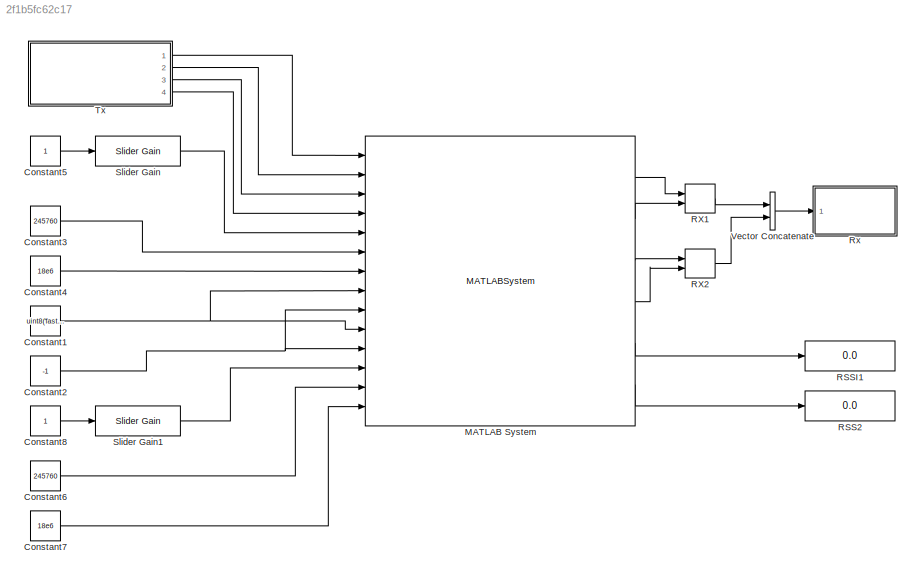
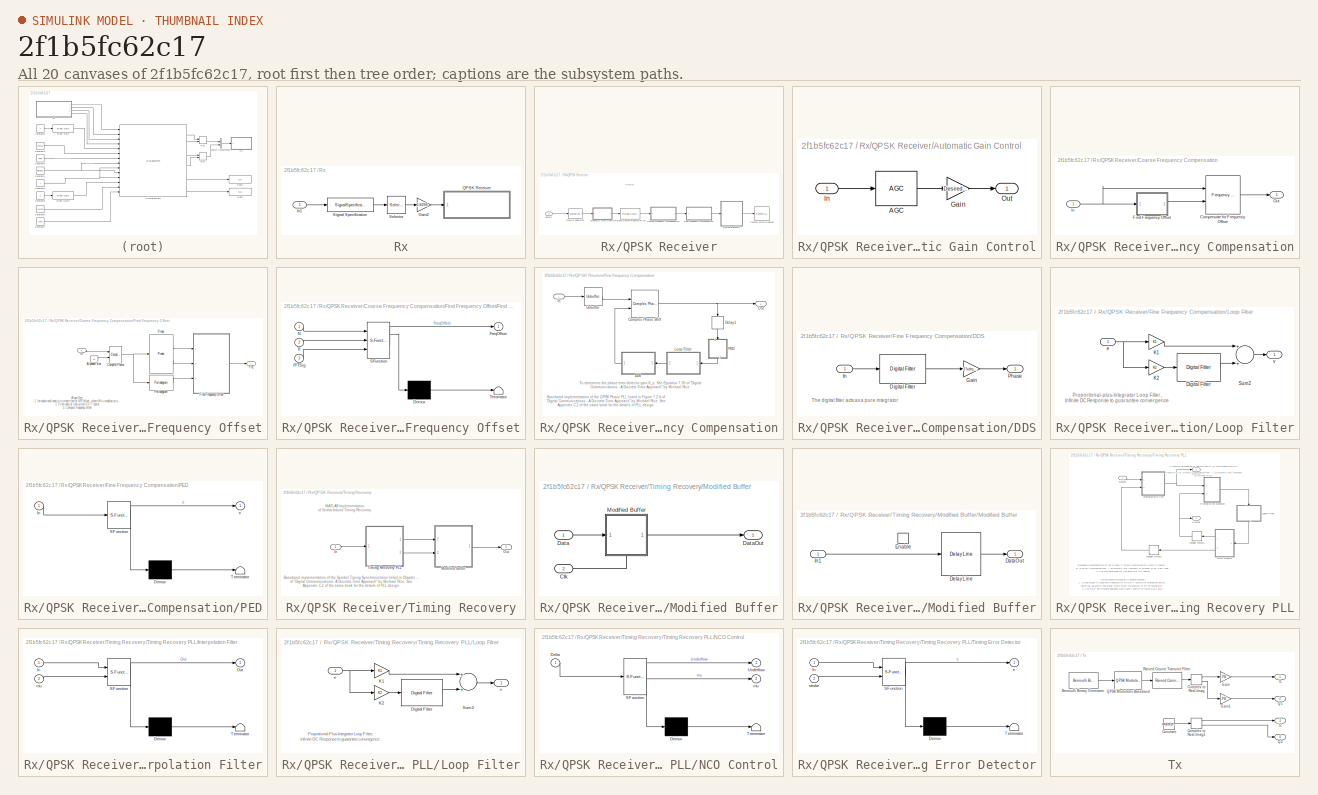
[diagram: thumbnail index - all 20 canvases of the model, root first then tree order]
MODEL slx_2f1b5fc62c17
KIND model
CONFIG AbsTol = auto
CONFIG EnableMultiTasking = on
CONFIG FixedStep = auto
CONFIG MaxStep = auto
CONFIG MinStep = auto
CONFIG PreLoadFcn = inputchannel = 120000;\noutputchannel = 40000;\nload('sdrqpsktx.mat');\nload('sdrqpskrx.mat');
CONFIG RelTol = 1e-3
CONFIG SampleTimeConstraint = Unconstrained
CONFIG Solver = ode45
CONFIG SolverName = ode45
CONFIG StartTime = 0.0
CONFIG StopTime = Inf
BLOCK [Constant] Constant1
  SampleTime = -1
  Value = uint8('fast_attack')
BLOCK [Constant] Constant2
  SampleTime = -1
  Value = -1
BLOCK [Constant] Constant3
  SampleTime = -1
  Value = 245760
BLOCK [Constant] Constant4
  SampleTime = -1
  Value = 18e6
BLOCK [Constant] Constant5
  SampleTime = -1
BLOCK [Constant] Constant6
  SampleTime = -1
  Value = 245760
BLOCK [Constant] Constant7
  SampleTime = -1
  Value = 18e6
BLOCK [Constant] Constant8
  SampleTime = -1
BLOCK [MATLABSystem] MATLAB System
  DialogController = sysobjdialog.BlockDynDialog
  MaskDisplay = disp('ad9361');\nport_label('input',1,'DATA_IN1');\nport_label('input',2,'DATA_IN2');\nport_label('input',3,'DATA_IN3');\nport_label('input',4,'DATA_IN4');\nport_label('input',5,'RX_LO_FREQ');\nport_label('input',6,'RX_SAMPLING_FREQ');\nport_label('input',7,'RX_RF_BANDWIDTH');\nport_label('input',8,'RX1_GAIN_MODE');\nport_label('input',9,'RX1_GAIN');\nport_label('input',10,'RX2_GAIN_MODE');\nport_label('inpu...<+354ch>
  MaskType = iio_sys_obj
  Ports = [14, 6]
  SimulateUsing = Interpreted execution
  System = iio_sys_obj
  dev_name = ad9361
  in_ch_no = 4
  in_ch_size = inputchannel
  ip_address = 192.168.3.2
  out_ch_no = 4
  out_ch_size = outputchannel
BLOCK [Display] RSS2
  Decimation = 1
  Ports = [1]
BLOCK [Display] RSSI1
  Decimation = 1
  Ports = [1]
BLOCK [RealImagToComplex] RX1
  Ports = [2, 1]
  SampleTime = 1/245760*outputchannel
BLOCK [RealImagToComplex] RX2
  Ports = [2, 1]
  SampleTime = 1/245760*outputchannel
BLOCK [SubSystem] Rx
  Ports = [1]
  RequestExecContextInheritance = off
BLOCK [Gain] Rx/Gain2
  Gain = 1/4096
  OutDataTypeStr = Inherit: Inherit via internal rule
  ParamDataTypeStr = Inherit: Inherit via internal rule
  SaturateOnIntegerOverflow = off
BLOCK [Inport] Rx/In1
  IconDisplay = Port number
BLOCK [SubSystem] Rx/QPSK Receiver
  Ports = [1]
  RequestExecContextInheritance = off
BLOCK [SubSystem] Rx/QPSK Receiver/Automatic Gain Control
  Ports = [1, 1]
  RequestExecContextInheritance = off
BLOCK [Reference] Rx/QPSK Receiver/Automatic Gain Control/AGC  REF=commrfcorlib/AGC
  Ports = [1, 1]
  SourceBlock = commrfcorlib/AGC
  SourceProductBaseCode = CM
  SourceProductName = Communications Toolbox
  SourceType = AGC
BLOCK [Gain] Rx/QPSK Receiver/Automatic Gain Control/Gain
  Gain = DesiredAmplitude
  OutDataTypeStr = Inherit: Inherit via internal rule
  ParamDataTypeStr = Inherit: Inherit via internal rule
  SaturateOnIntegerOverflow = off
BLOCK [Inport] Rx/QPSK Receiver/Automatic Gain Control/In
  IconDisplay = Port number
BLOCK [Outport] Rx/QPSK Receiver/Automatic Gain Control/Out
  IconDisplay = Port number
BLOCK [SubSystem] Rx/QPSK Receiver/Coarse Frequency Compensation
  Ports = [1, 1]
  RequestExecContextInheritance = off
BLOCK [Reference] Rx/QPSK Receiver/Coarse Frequency Compensation/Compensate for Frequency Offset  REF=commrflib2/Phase//
Frequency
Offset
  Ports = [2, 1]
  SourceBlock = commrflib2/Phase//\nFrequency\nOffset
  SourceProductBaseCode = CM
  SourceProductName = Communications Toolbox
  SourceType = Phase/Frequency Offset
BLOCK [SubSystem] Rx/QPSK Receiver/Coarse Frequency Compensation/Find Frequency Offset
  Ports = [1, 1]
  RequestExecContextInheritance = off
BLOCK [Constant] Rx/QPSK Receiver/Coarse Frequency Compensation/Find Frequency Offset/Alphabet size
  OutDataTypeStr = Inherit: Inherit via back propagation
  Value = M
BLOCK [Reference] Rx/QPSK Receiver/Coarse Frequency Compensation/Find Frequency Offset/Complex Power  REF=commblksprivate/Complex Power
  Ports = [2, 1]
  SourceBlock = commblksprivate/Complex Power
  SourceProductBaseCode = CM
  SourceProductName = Communications Toolbox
  SourceType = Complex Power
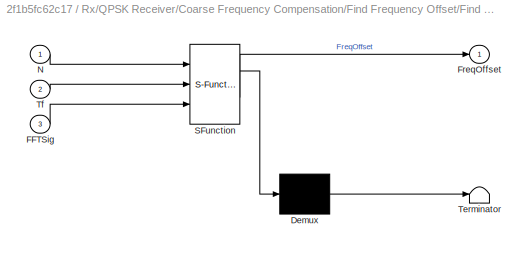
BLOCK [SubSystem] Rx/QPSK Receiver/Coarse Frequency Compensation/Find Frequency Offset/Find Frequency Offset
  ErrorFcn = Stateflow.Translate.translate
  PermitHierarchicalResolution = ExplicitOnly
  Ports = [3, 1]
  RequestExecContextInheritance = off
  SFBlockType = MATLAB Function
  TreatAsAtomicUnit = on
BLOCK [Demux] Rx/QPSK Receiver/Coarse Frequency Compensation/Find Frequency Offset/Find Frequency Offset/ Demux 
  Outputs = 1
  Ports = [1, 1]
BLOCK [S-Function] Rx/QPSK Receiver/Coarse Frequency Compensation/Find Frequency Offset/Find Frequency Offset/ SFunction 
  EnableBusSupport = off
  FunctionName = sf_sfun
  Parameters = M
  PortCounts = [3 2]
  Ports = [3, 2]
  SFcnIsStateOwnerBlock = off
  SFunctionDeploymentMode = off
  Tag = Stateflow S-Function 1
BLOCK [Terminator] Rx/QPSK Receiver/Coarse Frequency Compensation/Find Frequency Offset/Find Frequency Offset/ Terminator 
BLOCK [Inport] Rx/QPSK Receiver/Coarse Frequency Compensation/Find Frequency Offset/Find Frequency Offset/FFTSig
  IconDisplay = Port number
  Port = 3
BLOCK [Outport] Rx/QPSK Receiver/Coarse Frequency Compensation/Find Frequency Offset/Find Frequency Offset/FreqOffset
  IconDisplay = Port number
BLOCK [Inport] Rx/QPSK Receiver/Coarse Frequency Compensation/Find Frequency Offset/Find Frequency Offset/N
  IconDisplay = Port number
BLOCK [Inport] Rx/QPSK Receiver/Coarse Frequency Compensation/Find Frequency Offset/Find Frequency Offset/Tf
  IconDisplay = Port number
  Port = 2
BLOCK [Outport] Rx/QPSK Receiver/Coarse Frequency Compensation/Find Frequency Offset/Frq
  IconDisplay = Port number
BLOCK [Inport] Rx/QPSK Receiver/Coarse Frequency Compensation/Find Frequency Offset/In
  IconDisplay = Port number
BLOCK [Reference] Rx/QPSK Receiver/Coarse Frequency Compensation/Find Frequency Offset/Periodogram  REF=dspspect3/Periodogram
  Ports = [1, 1]
  SourceBlock = dspspect3/Periodogram
  SourceProductBaseCode = DS
  SourceProductName = DSP System Toolbox
  SourceType = Periodogram
BLOCK [Probe] Rx/QPSK Receiver/Coarse Frequency Compensation/Find Frequency Offset/Probe
  Ports = [1, 2]
  ProbeComplexSignal = off
BLOCK [Inport] Rx/QPSK Receiver/Coarse Frequency Compensation/In
  IconDisplay = Port number
BLOCK [Outport] Rx/QPSK Receiver/Coarse Frequency Compensation/Out
  IconDisplay = Port number
BLOCK [ConstellationDiagram] Rx/QPSK Receiver/Constellation Diagram
  Ports = [1]
  ScopeSpecificationString = comm.scopes.ConstellationDiagramBlockCfg('CurrentConfiguration', extmgr.ConfigurationSet(extmgr.Configuration('Core','General UI',true),extmgr.Configuration('Core','Source UI',true),extmgr.Configuration('Sources','WiredSimulink',true),extmgr.Configuration('Sources','Simulink',false),extmgr.Configuration('Sources','File',false),extmgr.Configuration('Sources','Workspace',false),extmgr.Configuration(...<+1467ch>
BLOCK [SubSystem] Rx/QPSK Receiver/Fine Frequency Compensation
  Ports = [1, 1]
  RequestExecContextInheritance = off
BLOCK [Reference] Rx/QPSK Receiver/Fine Frequency Compensation/Complex Phase Shift  REF=commutil2/Complex Phase
Shift
  Ports = [2, 1]
  SourceBlock = commutil2/Complex Phase\nShift
  SourceProductBaseCode = CM
  SourceProductName = Communications Toolbox
  SourceType = Complex Phase Shift
BLOCK [SubSystem] Rx/QPSK Receiver/Fine Frequency Compensation/DDS
  Ports = [1, 1]
  RequestExecContextInheritance = off
BLOCK [Reference] Rx/QPSK Receiver/Fine Frequency Compensation/DDS/Digital Filter  REF=dspobslib/Digital Filter
  Ports = [1, 1]
  SourceBlock = dspobslib/Digital Filter
  SourceProductBaseCode = DS
  SourceProductName = DSP System Toolbox
  SourceType = Digital Filter
  UserDataPersistent = on
BLOCK [Gain] Rx/QPSK Receiver/Fine Frequency Compensation/DDS/Gain
  Gain = -1*sdrqpskrx.FineFreqCompensateGain
  OutDataTypeStr = Inherit: Inherit via internal rule
  ParamDataTypeStr = Inherit: Inherit via internal rule
  SaturateOnIntegerOverflow = off
BLOCK [Inport] Rx/QPSK Receiver/Fine Frequency Compensation/DDS/In
  IconDisplay = Port number
BLOCK [Outport] Rx/QPSK Receiver/Fine Frequency Compensation/DDS/Phase
  IconDisplay = Port number
BLOCK [Delay] Rx/QPSK Receiver/Fine Frequency Compensation/Delay1
  DelayLength = 1
  InitialCondition = 0
  InputPortMap = u0
  InputProcessing = Columns as channels (frame based)
  Ports = [1, 1]
  UserDataPersistent = on
BLOCK [Inport] Rx/QPSK Receiver/Fine Frequency Compensation/In
  IconDisplay = Port number
BLOCK [SubSystem] Rx/QPSK Receiver/Fine Frequency Compensation/Loop Filter
  Ports = [1, 1]
  RequestExecContextInheritance = off
BLOCK [Reference] Rx/QPSK Receiver/Fine Frequency Compensation/Loop Filter/Digital Filter  REF=dspobslib/Digital Filter
  Ports = [1, 1]
  SourceBlock = dspobslib/Digital Filter
  SourceProductBaseCode = DS
  SourceProductName = DSP System Toolbox
  SourceType = Digital Filter
  UserDataPersistent = on
BLOCK [Gain] Rx/QPSK Receiver/Fine Frequency Compensation/Loop Filter/K1
  Gain = K1
  OutDataTypeStr = Inherit: Inherit via internal rule
  ParamDataTypeStr = Inherit: Inherit via internal rule
  SaturateOnIntegerOverflow = off
BLOCK [Gain] Rx/QPSK Receiver/Fine Frequency Compensation/Loop Filter/K2
  Gain = K2
  OutDataTypeStr = Inherit: Inherit via internal rule
  ParamDataTypeStr = Inherit: Inherit via internal rule
  SaturateOnIntegerOverflow = off
BLOCK [Sum] Rx/QPSK Receiver/Fine Frequency Compensation/Loop Filter/Sum2
  Ports = [2, 1]
BLOCK [Inport] Rx/QPSK Receiver/Fine Frequency Compensation/Loop Filter/e
  IconDisplay = Port number
BLOCK [Outport] Rx/QPSK Receiver/Fine Frequency Compensation/Loop Filter/v
  IconDisplay = Port number
BLOCK [Outport] Rx/QPSK Receiver/Fine Frequency Compensation/Out
  IconDisplay = Port number
BLOCK [SubSystem] Rx/QPSK Receiver/Fine Frequency Compensation/PED
  ErrorFcn = Stateflow.Translate.translate
  PermitHierarchicalResolution = ExplicitOnly
  Ports = [1, 1]
  RequestExecContextInheritance = off
  SFBlockType = MATLAB Function
  TreatAsAtomicUnit = on
BLOCK [Demux] Rx/QPSK Receiver/Fine Frequency Compensation/PED/ Demux 
  Outputs = 1
  Ports = [1, 1]
BLOCK [S-Function] Rx/QPSK Receiver/Fine Frequency Compensation/PED/ SFunction 
  EnableBusSupport = off
  FunctionName = sf_sfun
  PortCounts = [1 2]
  Ports = [1, 2]
  SFcnIsStateOwnerBlock = off
  SFunctionDeploymentMode = off
  Tag = Stateflow S-Function 7
BLOCK [Terminator] Rx/QPSK Receiver/Fine Frequency Compensation/PED/ Terminator 
BLOCK [Inport] Rx/QPSK Receiver/Fine Frequency Compensation/PED/In
  IconDisplay = Port number
BLOCK [Outport] Rx/QPSK Receiver/Fine Frequency Compensation/PED/e
  IconDisplay = Port number
BLOCK [Unbuffer] Rx/QPSK Receiver/Fine Frequency Compensation/Unbuffer
  Ports = [1, 1]
BLOCK [FrameConversion] Rx/QPSK Receiver/Frame Conversion
  Ports = [1, 1]
BLOCK [Reference] Rx/QPSK Receiver/Raised Cosine Receive Filter  REF=commfilt2/Raised Cosine
Receive Filter
  Ports = [1, 1]
  SourceBlock = commfilt2/Raised Cosine\nReceive Filter
  SourceProductBaseCode = CM
  SourceProductName = Communications Toolbox
  SourceType = Raised Cosine Receive Filter
  UserDataPersistent = on
BLOCK [SubSystem] Rx/QPSK Receiver/Timing Recovery
  Ports = [1, 1]
  RequestExecContextInheritance = off
BLOCK [Inport] Rx/QPSK Receiver/Timing Recovery/In
  IconDisplay = Port number
BLOCK [SubSystem] Rx/QPSK Receiver/Timing Recovery/Modified Buffer
  Ports = [2, 1]
  RequestExecContextInheritance = off
  TreatAsAtomicUnit = on
BLOCK [Inport] Rx/QPSK Receiver/Timing Recovery/Modified Buffer/Clk
  IconDisplay = Port number
  Port = 2
BLOCK [Inport] Rx/QPSK Receiver/Timing Recovery/Modified Buffer/Data
  IconDisplay = Port number
BLOCK [Outport] Rx/QPSK Receiver/Timing Recovery/Modified Buffer/DataOut
  IconDisplay = Port number
BLOCK [SubSystem] Rx/QPSK Receiver/Timing Recovery/Modified Buffer/Modified Buffer
  Ports = [1, 1, 1]
  RequestExecContextInheritance = off
BLOCK [Outport] Rx/QPSK Receiver/Timing Recovery/Modified Buffer/Modified Buffer/DataOut
  IconDisplay = Port number
BLOCK [Reference] Rx/QPSK Receiver/Timing Recovery/Modified Buffer/Modified Buffer/Delay Line  REF=dspbuff3/Delay Line
  Ports = [1, 1]
  SourceBlock = dspbuff3/Delay Line
  SourceProductBaseCode = DS
  SourceProductName = DSP System Toolbox
  SourceType = Delay Line
  UserDataPersistent = on
BLOCK [EnablePort] Rx/QPSK Receiver/Timing Recovery/Modified Buffer/Modified Buffer/Enable
  Ports = []
BLOCK [Inport] Rx/QPSK Receiver/Timing Recovery/Modified Buffer/Modified Buffer/In1
  IconDisplay = Port number
BLOCK [Outport] Rx/QPSK Receiver/Timing Recovery/Out
  IconDisplay = Port number
BLOCK [SubSystem] Rx/QPSK Receiver/Timing Recovery/Timing Recovery PLL
  Ports = [1, 2]
  RequestExecContextInheritance = off
BLOCK [Outport] Rx/QPSK Receiver/Timing Recovery/Timing Recovery PLL/ClkOut
  IconDisplay = Port number
  Port = 2
BLOCK [Inport] Rx/QPSK Receiver/Timing Recovery/Timing Recovery PLL/DataIn
  IconDisplay = Port number
BLOCK [Outport] Rx/QPSK Receiver/Timing Recovery/Timing Recovery PLL/DataOut
  IconDisplay = Port number
BLOCK [Delay] Rx/QPSK Receiver/Timing Recovery/Timing Recovery PLL/Integer Delay1
  DelayLength = 1
  InputPortMap = u0
  Ports = [1, 1]
  UserDataPersistent = on
BLOCK [Delay] Rx/QPSK Receiver/Timing Recovery/Timing Recovery PLL/Integer Delay2
  DelayLength = 1
  InputPortMap = u0
  Ports = [1, 1]
  UserDataPersistent = on
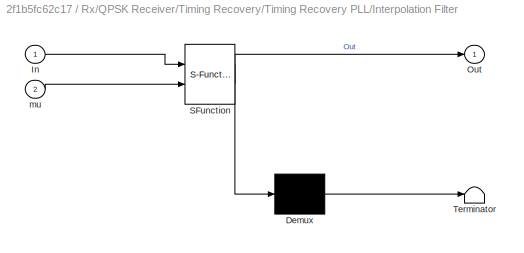
BLOCK [SubSystem] Rx/QPSK Receiver/Timing Recovery/Timing Recovery PLL/Interpolation Filter
  ErrorFcn = Stateflow.Translate.translate
  PermitHierarchicalResolution = ExplicitOnly
  Ports = [2, 1]
  RequestExecContextInheritance = off
  SFBlockType = MATLAB Function
  TreatAsAtomicUnit = on
BLOCK [Demux] Rx/QPSK Receiver/Timing Recovery/Timing Recovery PLL/Interpolation Filter/ Demux 
  Outputs = 1
  Ports = [1, 1]
BLOCK [S-Function] Rx/QPSK Receiver/Timing Recovery/Timing Recovery PLL/Interpolation Filter/ SFunction 
  EnableBusSupport = off
  FunctionName = sf_sfun
  PortCounts = [2 2]
  Ports = [2, 2]
  SFcnIsStateOwnerBlock = off
  SFunctionDeploymentMode = off
  Tag = Stateflow S-Function 10
BLOCK [Terminator] Rx/QPSK Receiver/Timing Recovery/Timing Recovery PLL/Interpolation Filter/ Terminator 
BLOCK [Inport] Rx/QPSK Receiver/Timing Recovery/Timing Recovery PLL/Interpolation Filter/In
  IconDisplay = Port number
BLOCK [Outport] Rx/QPSK Receiver/Timing Recovery/Timing Recovery PLL/Interpolation Filter/Out
  IconDisplay = Port number
BLOCK [Inport] Rx/QPSK Receiver/Timing Recovery/Timing Recovery PLL/Interpolation Filter/mu
  IconDisplay = Port number
  Port = 2
BLOCK [SubSystem] Rx/QPSK Receiver/Timing Recovery/Timing Recovery PLL/Loop Filter
  Ports = [1, 1]
  RequestExecContextInheritance = off
BLOCK [Reference] Rx/QPSK Receiver/Timing Recovery/Timing Recovery PLL/Loop Filter/Digital Filter  REF=dspobslib/Digital Filter
  Ports = [1, 1]
  SourceBlock = dspobslib/Digital Filter
  SourceProductBaseCode = DS
  SourceProductName = DSP System Toolbox
  SourceType = Digital Filter
  UserDataPersistent = on
BLOCK [Gain] Rx/QPSK Receiver/Timing Recovery/Timing Recovery PLL/Loop Filter/K1
  Gain = K1
  OutDataTypeStr = Inherit: Inherit via internal rule
  ParamDataTypeStr = Inherit: Inherit via internal rule
  SaturateOnIntegerOverflow = off
BLOCK [Gain] Rx/QPSK Receiver/Timing Recovery/Timing Recovery PLL/Loop Filter/K2
  Gain = K2
  OutDataTypeStr = Inherit: Inherit via internal rule
  ParamDataTypeStr = Inherit: Inherit via internal rule
  SaturateOnIntegerOverflow = off
BLOCK [Sum] Rx/QPSK Receiver/Timing Recovery/Timing Recovery PLL/Loop Filter/Sum2
  Ports = [2, 1]
BLOCK [Inport] Rx/QPSK Receiver/Timing Recovery/Timing Recovery PLL/Loop Filter/e
  IconDisplay = Port number
BLOCK [Outport] Rx/QPSK Receiver/Timing Recovery/Timing Recovery PLL/Loop Filter/v
  IconDisplay = Port number
BLOCK [SubSystem] Rx/QPSK Receiver/Timing Recovery/Timing Recovery PLL/NCO Control
  ErrorFcn = Stateflow.Translate.translate
  PermitHierarchicalResolution = ExplicitOnly
  Ports = [1, 2]
  RequestExecContextInheritance = off
  SFBlockType = MATLAB Function
BLOCK [Demux] Rx/QPSK Receiver/Timing Recovery/Timing Recovery PLL/NCO Control/ Demux 
  Outputs = 1
  Ports = [1, 1]
BLOCK [S-Function] Rx/QPSK Receiver/Timing Recovery/Timing Recovery PLL/NCO Control/ SFunction 
  EnableBusSupport = off
  FunctionName = sf_sfun
  Parameters = sdrqpskrx
  PortCounts = [1 3]
  Ports = [1, 3]
  SFcnIsStateOwnerBlock = off
  SFunctionDeploymentMode = off
  Tag = Stateflow S-Function 11
BLOCK [Terminator] Rx/QPSK Receiver/Timing Recovery/Timing Recovery PLL/NCO Control/ Terminator 
BLOCK [Inport] Rx/QPSK Receiver/Timing Recovery/Timing Recovery PLL/NCO Control/Delta
  IconDisplay = Port number
BLOCK [Outport] Rx/QPSK Receiver/Timing Recovery/Timing Recovery PLL/NCO Control/Underflow
  IconDisplay = Port number
BLOCK [Outport] Rx/QPSK Receiver/Timing Recovery/Timing Recovery PLL/NCO Control/mu
  IconDisplay = Port number
  Port = 2
BLOCK [SubSystem] Rx/QPSK Receiver/Timing Recovery/Timing Recovery PLL/Timing Error Detector
  ErrorFcn = Stateflow.Translate.translate
  PermitHierarchicalResolution = ExplicitOnly
  Ports = [2, 1]
  RequestExecContextInheritance = off
  SFBlockType = MATLAB Function
  TreatAsAtomicUnit = on
BLOCK [Demux] Rx/QPSK Receiver/Timing Recovery/Timing Recovery PLL/Timing Error Detector/ Demux 
  Outputs = 1
  Ports = [1, 1]
BLOCK [S-Function] Rx/QPSK Receiver/Timing Recovery/Timing Recovery PLL/Timing Error Detector/ SFunction 
  EnableBusSupport = off
  FunctionName = sf_sfun
  PortCounts = [2 2]
  Ports = [2, 2]
  SFcnIsStateOwnerBlock = off
  SFunctionDeploymentMode = off
  Tag = Stateflow S-Function 15
BLOCK [Terminator] Rx/QPSK Receiver/Timing Recovery/Timing Recovery PLL/Timing Error Detector/ Terminator 
BLOCK [Inport] Rx/QPSK Receiver/Timing Recovery/Timing Recovery PLL/Timing Error Detector/In
  IconDisplay = Port number
BLOCK [Outport] Rx/QPSK Receiver/Timing Recovery/Timing Recovery PLL/Timing Error Detector/e
  IconDisplay = Port number
BLOCK [Inport] Rx/QPSK Receiver/Timing Recovery/Timing Recovery PLL/Timing Error Detector/strobe
  IconDisplay = Port number
  Port = 2
BLOCK [Inport] Rx/QPSK Receiver/dataIn
  IconDisplay = Port number
BLOCK [Selector] Rx/Selector
  IndexOptions = Index vector (dialog),Index vector (dialog)
  Indices = [1:sdrqpskrx.RadioFrameSize],1
  InputPortWidth = 8000
  NumberOfDimensions = 2
  OutputSizes = 1,1
  Ports = [1, 1]
BLOCK [SignalSpecification] Rx/Signal Specification
  SampleTime = sdrqpskrx.RadioFrameSize/sdrqpskrx.Fs
BLOCK [Reference] Slider Gain  REF=simulink/Math
Operations/Slider
Gain
  Ports = [1, 1]
  SourceBlock = simulink/Math\nOperations/Slider\nGain
  SourceProductBaseCode = SL
  SourceProductName = Simulink
  SourceType = Slider Gain
BLOCK [Reference] Slider Gain1  REF=simulink/Math
Operations/Slider
Gain
  Ports = [1, 1]
  SourceBlock = simulink/Math\nOperations/Slider\nGain
  SourceProductBaseCode = SL
  SourceProductName = Simulink
  SourceType = Slider Gain
BLOCK [SubSystem] Tx
  Ports = [0, 4]
  RequestExecContextInheritance = off
BLOCK [Reference] Tx/Bernoulli Binary Generator  REF=commrandsrc2/Bernoulli Binary
Generator
  Ports = [0, 1]
  SourceBlock = commrandsrc2/Bernoulli Binary\nGenerator
  SourceProductBaseCode = CM
  SourceProductName = Communications Toolbox
  SourceType = Bernoulli Binary Generator
BLOCK [ComplexToRealImag] Tx/Complex to Real-Imag
  Ports = [1, 2]
BLOCK [ComplexToRealImag] Tx/Complex to Real-Imag1
  Ports = [1, 2]
BLOCK [Constant] Tx/Constant
  SamplingMode = Frame based
  Value = complex(zeros(inputchannel,1),zeros(inputchannel,1))
  VectorParams1D = off
BLOCK [Gain] Tx/Gain
  Gain = 2^14
  OutDataTypeStr = Inherit: Inherit via internal rule
  ParamDataTypeStr = Inherit: Inherit via internal rule
  SaturateOnIntegerOverflow = off
BLOCK [Gain] Tx/Gain1
  Gain = 2^14
  OutDataTypeStr = Inherit: Inherit via internal rule
  ParamDataTypeStr = Inherit: Inherit via internal rule
  SaturateOnIntegerOverflow = off
BLOCK [Outport] Tx/I1
  IconDisplay = Port number
BLOCK [Outport] Tx/I2
  IconDisplay = Port number
  Port = 3
BLOCK [Outport] Tx/Q1
  IconDisplay = Port number
  Port = 2
BLOCK [Outport] Tx/Q2
  IconDisplay = Port number
  Port = 4
BLOCK [Reference] Tx/QPSK Modulator Baseband  REF=commdigbbndpm3/QPSK
Modulator
Baseband
  Ports = [1, 1]
  SourceBlock = commdigbbndpm3/QPSK\nModulator\nBaseband
  SourceProductBaseCode = CM
  SourceProductName = Communications Toolbox
  SourceType = QPSK Modulator Baseband
BLOCK [Reference] Tx/Raised Cosine Transmit Filter  REF=commfilt2/Raised Cosine
Transmit Filter
  Ports = [1, 1]
  SourceBlock = commfilt2/Raised Cosine\nTransmit Filter
  SourceProductBaseCode = CM
  SourceProductName = Communications Toolbox
  SourceType = Raised Cosine Transmit Filter
  UserDataPersistent = on
BLOCK [Concatenate] Vector Concatenate
  ConcatenateDimension = 2
  Mode = Multidimensional array
  Ports = [2, 1]
ANNOTATION Rx/QPSK Receiver: Receiver
ANNOTATION Rx/QPSK Receiver/Coarse Frequency Compensation/Find Frequency Offset: Algorithm: 1. Introduce nonlinearity to create tone at M*Foffset, where M is modulation order 2. Find index of tone within FFT vector 3. Compute frequency offset
ANNOTATION Rx/QPSK Receiver/Fine Frequency Compensation: Baseband implementation of the QPSK Phase PLL listed in Figure 7.2.4 of "Digital Communications - A Discrete-Time Approach" by Michael Rice. See Appendix C.2 of the same book for the details of PLL design.
ANNOTATION Rx/QPSK Receiver/Fine Frequency Compensation: To determine the phase error detector gain K_p, See Equation 7.30 of "Digital Communications - A Discrete-Time Approach" by Michael Rice.
ANNOTATION Rx/QPSK Receiver/Fine Frequency Compensation/DDS: The digital filter acts as a pure integrator
ANNOTATION Rx/QPSK Receiver/Fine Frequency Compensation/Loop Filter: Proportional-plus-Integrator Loop Filter, Infinite DC Response to guarantee convergence
ANNOTATION Rx/QPSK Receiver/Timing Recovery: Baseband implementation of the Symbol Timing Synchronization listed in Chapter 8.4 of "Digital Communications- A Discrete-Time Approach" by Michael Rice. See Appendix C.2 of the same book for the details of PLL design.
ANNOTATION Rx/QPSK Receiver/Timing Recovery: MATLAB Implementation of Scalar-based Timing Recovery
ANNOTATION Rx/QPSK Receiver/Timing Recovery/Timing Recovery PLL: Baseband implementation of the Symbol Timing Synchronization listed in Chapter 8.4 of "Digital Communications- A Discrete-Time Approach" by Michael Rice. See Appendix C.2 of the same book for the details of PLL design.
ANNOTATION Rx/QPSK Receiver/Timing Recovery/Timing Recovery PLL: Sample-based processing is adopted because 1. Strobe signal is required to generate for EVERY sample for processing and output sampling, delayed strobe signal would affect the accuracy of bit stripping/stuffing 2. The BER performance degrades significantly even with frame size 2 and 4
ANNOTATION Rx/QPSK Receiver/Timing Recovery/Timing Recovery PLL: To determine phase error detector gain K_p, See Equation 8.42 & Figure 8.4.7 of "Digital Communications - A Discrete-Time Approach" by Michael Rice.
ANNOTATION Rx/QPSK Receiver/Timing Recovery/Timing Recovery PLL/Loop Filter: Proportional-Plus-Integrator Loop Filter, Infinite DC Response to guarantee convergence
NET Constant1:1 -> MATLAB System:10, MATLAB System:8
NET Constant2:1 -> MATLAB System:11, MATLAB System:9
LINE Constant3:1 -> MATLAB System:6
LINE Constant4:1 -> MATLAB System:7
LINE Constant5:1 -> Slider Gain:1
LINE Constant6:1 -> MATLAB System:13
LINE Constant7:1 -> MATLAB System:14
LINE Constant8:1 -> Slider Gain1:1
LINE MATLAB System:1 -> RX1:1
LINE MATLAB System:2 -> RX1:2
LINE MATLAB System:3 -> RX2:1
LINE MATLAB System:4 -> RX2:2
LINE MATLAB System:5 -> RSSI1:1
LINE MATLAB System:6 -> RSS2:1
LINE RX1:1 -> Vector Concatenate:1
LINE RX2:1 -> Vector Concatenate:2
LINE Rx/Gain2:1 -> Rx/QPSK Receiver:1
LINE Rx/In1:1 -> Rx/Signal Specification:1
LINE Rx/QPSK Receiver/Automatic Gain Control/AGC:1 -> Rx/QPSK Receiver/Automatic Gain Control/Gain:1
LINE Rx/QPSK Receiver/Automatic Gain Control/Gain:1 -> Rx/QPSK Receiver/Automatic Gain Control/Out:1
LINE Rx/QPSK Receiver/Automatic Gain Control/In:1 -> Rx/QPSK Receiver/Automatic Gain Control/AGC:1
LINE Rx/QPSK Receiver/Automatic Gain Control:1 -> Rx/QPSK Receiver/Raised Cosine Receive Filter:1
LINE Rx/QPSK Receiver/Coarse Frequency Compensation/Compensate for Frequency Offset:1 -> Rx/QPSK Receiver/Coarse Frequency Compensation/Out:1
LINE Rx/QPSK Receiver/Coarse Frequency Compensation/Find Frequency Offset/Alphabet size:1 -> Rx/QPSK Receiver/Coarse Frequency Compensation/Find Frequency Offset/Complex Power:2
NET Rx/QPSK Receiver/Coarse Frequency Compensation/Find Frequency Offset/Complex Power:1 -> Rx/QPSK Receiver/Coarse Frequency Compensation/Find Frequency Offset/Periodogram:1, Rx/QPSK Receiver/Coarse Frequency Compensation/Find Frequency Offset/Probe:1
LINE Rx/QPSK Receiver/Coarse Frequency Compensation/Find Frequency Offset/Find Frequency Offset:1 -> Rx/QPSK Receiver/Coarse Frequency Compensation/Find Frequency Offset/Frq:1
LINE Rx/QPSK Receiver/Coarse Frequency Compensation/Find Frequency Offset/In:1 -> Rx/QPSK Receiver/Coarse Frequency Compensation/Find Frequency Offset/Complex Power:1
LINE Rx/QPSK Receiver/Coarse Frequency Compensation/Find Frequency Offset/Periodogram:1 -> Rx/QPSK Receiver/Coarse Frequency Compensation/Find Frequency Offset/Find Frequency Offset:3
LINE Rx/QPSK Receiver/Coarse Frequency Compensation/Find Frequency Offset/Probe:1 -> Rx/QPSK Receiver/Coarse Frequency Compensation/Find Frequency Offset/Find Frequency Offset:1
LINE Rx/QPSK Receiver/Coarse Frequency Compensation/Find Frequency Offset/Probe:2 -> Rx/QPSK Receiver/Coarse Frequency Compensation/Find Frequency Offset/Find Frequency Offset:2
LINE Rx/QPSK Receiver/Coarse Frequency Compensation/Find Frequency Offset:1 -> Rx/QPSK Receiver/Coarse Frequency Compensation/Compensate for Frequency Offset:2
NET Rx/QPSK Receiver/Coarse Frequency Compensation/In:1 -> Rx/QPSK Receiver/Coarse Frequency Compensation/Compensate for Frequency Offset:1, Rx/QPSK Receiver/Coarse Frequency Compensation/Find Frequency Offset:1
LINE Rx/QPSK Receiver/Coarse Frequency Compensation:1 -> Rx/QPSK Receiver/Fine Frequency Compensation:1
NET Rx/QPSK Receiver/Fine Frequency Compensation/Complex Phase Shift:1 -> Rx/QPSK Receiver/Fine Frequency Compensation/Delay1:1, Rx/QPSK Receiver/Fine Frequency Compensation/Out:1
LINE Rx/QPSK Receiver/Fine Frequency Compensation/DDS/Digital Filter:1 -> Rx/QPSK Receiver/Fine Frequency Compensation/DDS/Gain:1
LINE Rx/QPSK Receiver/Fine Frequency Compensation/DDS/Gain:1 -> Rx/QPSK Receiver/Fine Frequency Compensation/DDS/Phase:1
LINE Rx/QPSK Receiver/Fine Frequency Compensation/DDS/In:1 -> Rx/QPSK Receiver/Fine Frequency Compensation/DDS/Digital Filter:1
LINE Rx/QPSK Receiver/Fine Frequency Compensation/DDS:1 -> Rx/QPSK Receiver/Fine Frequency Compensation/Complex Phase Shift:2
LINE Rx/QPSK Receiver/Fine Frequency Compensation/Delay1:1 -> Rx/QPSK Receiver/Fine Frequency Compensation/PED:1
LINE Rx/QPSK Receiver/Fine Frequency Compensation/In:1 -> Rx/QPSK Receiver/Fine Frequency Compensation/Unbuffer:1
LINE Rx/QPSK Receiver/Fine Frequency Compensation/Loop Filter/Digital Filter:1 -> Rx/QPSK Receiver/Fine Frequency Compensation/Loop Filter/Sum2:2
LINE Rx/QPSK Receiver/Fine Frequency Compensation/Loop Filter/K1:1 -> Rx/QPSK Receiver/Fine Frequency Compensation/Loop Filter/Sum2:1
LINE Rx/QPSK Receiver/Fine Frequency Compensation/Loop Filter/K2:1 -> Rx/QPSK Receiver/Fine Frequency Compensation/Loop Filter/Digital Filter:1
LINE Rx/QPSK Receiver/Fine Frequency Compensation/Loop Filter/Sum2:1 -> Rx/QPSK Receiver/Fine Frequency Compensation/Loop Filter/v:1
NET Rx/QPSK Receiver/Fine Frequency Compensation/Loop Filter/e:1 -> Rx/QPSK Receiver/Fine Frequency Compensation/Loop Filter/K1:1, Rx/QPSK Receiver/Fine Frequency Compensation/Loop Filter/K2:1
LINE Rx/QPSK Receiver/Fine Frequency Compensation/Loop Filter:1 -> Rx/QPSK Receiver/Fine Frequency Compensation/DDS:1
LINE Rx/QPSK Receiver/Fine Frequency Compensation/PED:1 -> Rx/QPSK Receiver/Fine Frequency Compensation/Loop Filter:1
LINE Rx/QPSK Receiver/Fine Frequency Compensation/Unbuffer:1 -> Rx/QPSK Receiver/Fine Frequency Compensation/Complex Phase Shift:1
LINE Rx/QPSK Receiver/Fine Frequency Compensation:1 -> Rx/QPSK Receiver/Timing Recovery:1
LINE Rx/QPSK Receiver/Frame Conversion:1 -> Rx/QPSK Receiver/Automatic Gain Control:1
LINE Rx/QPSK Receiver/Raised Cosine Receive Filter:1 -> Rx/QPSK Receiver/Coarse Frequency Compensation:1
LINE Rx/QPSK Receiver/Timing Recovery/In:1 -> Rx/QPSK Receiver/Timing Recovery/Timing Recovery PLL:1
LINE Rx/QPSK Receiver/Timing Recovery/Modified Buffer/Clk:1 -> Rx/QPSK Receiver/Timing Recovery/Modified Buffer/Modified Buffer:enable
LINE Rx/QPSK Receiver/Timing Recovery/Modified Buffer/Data:1 -> Rx/QPSK Receiver/Timing Recovery/Modified Buffer/Modified Buffer:1
LINE Rx/QPSK Receiver/Timing Recovery/Modified Buffer/Modified Buffer/Delay Line:1 -> Rx/QPSK Receiver/Timing Recovery/Modified Buffer/Modified Buffer/DataOut:1
LINE Rx/QPSK Receiver/Timing Recovery/Modified Buffer/Modified Buffer/In1:1 -> Rx/QPSK Receiver/Timing Recovery/Modified Buffer/Modified Buffer/Delay Line:1
LINE Rx/QPSK Receiver/Timing Recovery/Modified Buffer/Modified Buffer:1 -> Rx/QPSK Receiver/Timing Recovery/Modified Buffer/DataOut:1
LINE Rx/QPSK Receiver/Timing Recovery/Modified Buffer:1 -> Rx/QPSK Receiver/Timing Recovery/Out:1
LINE Rx/QPSK Receiver/Timing Recovery/Timing Recovery PLL/DataIn:1 -> Rx/QPSK Receiver/Timing Recovery/Timing Recovery PLL/Interpolation Filter:1
NET Rx/QPSK Receiver/Timing Recovery/Timing Recovery PLL/Integer Delay1:1 -> Rx/QPSK Receiver/Timing Recovery/Timing Recovery PLL/ClkOut:1, Rx/QPSK Receiver/Timing Recovery/Timing Recovery PLL/Timing Error Detector:2
LINE Rx/QPSK Receiver/Timing Recovery/Timing Recovery PLL/Integer Delay2:1 -> Rx/QPSK Receiver/Timing Recovery/Timing Recovery PLL/Interpolation Filter:2
NET Rx/QPSK Receiver/Timing Recovery/Timing Recovery PLL/Interpolation Filter:1 -> Rx/QPSK Receiver/Timing Recovery/Timing Recovery PLL/DataOut:1, Rx/QPSK Receiver/Timing Recovery/Timing Recovery PLL/Timing Error Detector:1
LINE Rx/QPSK Receiver/Timing Recovery/Timing Recovery PLL/Loop Filter/Digital Filter:1 -> Rx/QPSK Receiver/Timing Recovery/Timing Recovery PLL/Loop Filter/Sum2:2
LINE Rx/QPSK Receiver/Timing Recovery/Timing Recovery PLL/Loop Filter/K1:1 -> Rx/QPSK Receiver/Timing Recovery/Timing Recovery PLL/Loop Filter/Sum2:1
LINE Rx/QPSK Receiver/Timing Recovery/Timing Recovery PLL/Loop Filter/K2:1 -> Rx/QPSK Receiver/Timing Recovery/Timing Recovery PLL/Loop Filter/Digital Filter:1
LINE Rx/QPSK Receiver/Timing Recovery/Timing Recovery PLL/Loop Filter/Sum2:1 -> Rx/QPSK Receiver/Timing Recovery/Timing Recovery PLL/Loop Filter/v:1
NET Rx/QPSK Receiver/Timing Recovery/Timing Recovery PLL/Loop Filter/e:1 -> Rx/QPSK Receiver/Timing Recovery/Timing Recovery PLL/Loop Filter/K1:1, Rx/QPSK Receiver/Timing Recovery/Timing Recovery PLL/Loop Filter/K2:1
LINE Rx/QPSK Receiver/Timing Recovery/Timing Recovery PLL/Loop Filter:1 -> Rx/QPSK Receiver/Timing Recovery/Timing Recovery PLL/NCO Control:1
LINE Rx/QPSK Receiver/Timing Recovery/Timing Recovery PLL/NCO Control:1 -> Rx/QPSK Receiver/Timing Recovery/Timing Recovery PLL/Integer Delay1:1
LINE Rx/QPSK Receiver/Timing Recovery/Timing Recovery PLL/NCO Control:2 -> Rx/QPSK Receiver/Timing Recovery/Timing Recovery PLL/Integer Delay2:1
LINE Rx/QPSK Receiver/Timing Recovery/Timing Recovery PLL/Timing Error Detector:1 -> Rx/QPSK Receiver/Timing Recovery/Timing Recovery PLL/Loop Filter:1
LINE Rx/QPSK Receiver/Timing Recovery/Timing Recovery PLL:1 -> Rx/QPSK Receiver/Timing Recovery/Modified Buffer:1
LINE Rx/QPSK Receiver/Timing Recovery/Timing Recovery PLL:2 -> Rx/QPSK Receiver/Timing Recovery/Modified Buffer:2
LINE Rx/QPSK Receiver/Timing Recovery:1 -> Rx/QPSK Receiver/Constellation Diagram:1
LINE Rx/QPSK Receiver/dataIn:1 -> Rx/QPSK Receiver/Frame Conversion:1
LINE Rx/Selector:1 -> Rx/Gain2:1
LINE Rx/Signal Specification:1 -> Rx/Selector:1
LINE Slider Gain1:1 -> MATLAB System:12
LINE Slider Gain:1 -> MATLAB System:5
LINE Tx/Bernoulli Binary Generator:1 -> Tx/QPSK Modulator Baseband:1
LINE Tx/Complex to Real-Imag1:1 -> Tx/I2:1
LINE Tx/Complex to Real-Imag1:2 -> Tx/Q2:1
LINE Tx/Complex to Real-Imag:1 -> Tx/Gain:1
LINE Tx/Complex to Real-Imag:2 -> Tx/Gain1:1
LINE Tx/Constant:1 -> Tx/Complex to Real-Imag1:1
LINE Tx/Gain1:1 -> Tx/Q1:1
LINE Tx/Gain:1 -> Tx/I1:1
LINE Tx/QPSK Modulator Baseband:1 -> Tx/Raised Cosine Transmit Filter:1
LINE Tx/Raised Cosine Transmit Filter:1 -> Tx/Complex to Real-Imag:1
LINE Tx:1 -> MATLAB System:1
LINE Tx:2 -> MATLAB System:2
LINE Tx:3 -> MATLAB System:3
LINE Tx:4 -> MATLAB System:4
LINE Vector Concatenate:1 -> Rx:1
note: NET lines group one-source signal fan-out (src -> all destinations, sorted); 1:1 wires keep LINE
CHART Rx/QPSK Receiver/Coarse Frequency
Compensation/Find Frequency Offset/Find Frequency
Offset states=1 transitions=1
  STATE_LABEL 'eML_blk_kernel()'
  STATE_LABEL 'SCRIPT:\nfunction FreqOffset = findfreqoffset(N,Tf,FFTSig,M) %#codegen\n%  Estimate frequency offset.\n%  findfreqoffset(N,Tf,fvec,params) returns the estimated frequency offset\n%  given time-domain frame length N, sample time vector Tf containing\n%  [frameTime,offsetTime], complex FFT vector FFTsig, and modulation\n%  order M.\n\n% Find index of max magnitude, convert to offset symmetric about zero.\n% ...<+434ch>'
CHART Rx/QPSK Receiver/Fine Frequency
Compensation/PED states=1 transitions=1
  STATE_LABEL 'eML_blk_kernel()'
  STATE_LABEL 'SCRIPT:\nfunction e = PED(In)\n% Implementation of Maximum Likelihood Phase Error Detector listed in\n% Chapter 7.2.2 of "Digital Communications - A Discrete-Time Approach" by\n% Michael Rice. This employs a decision directed method.\n% \n% Input: \n%   In - Input samples, oversampled by two\n% Output:\n%   e - Phase error, de\n%#codegen\n\ne = sign(real(In)).*imag(In) - sign(imag(In)).*real(In);'
CHART Rx/QPSK Receiver/Timing
Recovery/Timing Recovery PLL/Interpolation Filter states=1 transitions=1
  STATE_LABEL 'eML_blk_kernel()'
  STATE_LABEL 'SCRIPT:\nfunction Out = interp_filter(In, mu)\n% Prabolic piecewise polynomial interpolator, Farrow Interpolator with \n% alpha = 1/2, see Figure 8.4.16 of "Digital Communications - A \n% Discrete-Time Approach" by Michael Rice.\n% Input:\n%   In - Input samples, oversampled by two\n%   mu - Difference between actual sampling instant and the optimal instant,\n%        between zero and one\n% Output:\n%   Ou...<+369ch>'
CHART Rx/QPSK Receiver/Timing
Recovery/Timing Recovery PLL/NCO Control states=1 transitions=1
  STATE_LABEL 'eML_blk_kernel()'
  STATE_LABEL 'SCRIPT:\nfunction [Underflow, mu] = NCO_ctrl(Delta, sdrqpskrx)\n% Implementation of modulo-1 counter for interpolation control listed in\n% Figure 8.4.19 of "Digital Communications - A Discrete-Time Approach"\n% by Michael Rice. See design details in Chapter 8.4.3 of the same book.\n% \n% Input:\n%   Delta - Loop filter output. If loop is in lock, delta would be small\n%   qpsktxrx - Simulation parameter ...<+824ch>'
CHART Rx/QPSK Receiver/Timing
Recovery/Timing Recovery PLL/Timing Error
Detector states=1 transitions=1
  STATE_LABEL 'eML_blk_kernel()'
  STATE_LABEL 'SCRIPT:\nfunction e = TED(In, strobe)\n% Zero-Crossing Timing Error Detector. See "Zero-Crossing Timing Error\n% Detector" section in Chapter 8.4.1 of "Digital Communications - A\n% Discrete-Time Approach" by Michael Rice. For bit stuffing/stripping\n% details, see page 490-494 of the same book.\n%\n% Input: \n%   In - Input samples, interpolation result\n%   strobe - Signal to enable timing error calculat...<+803ch>'
